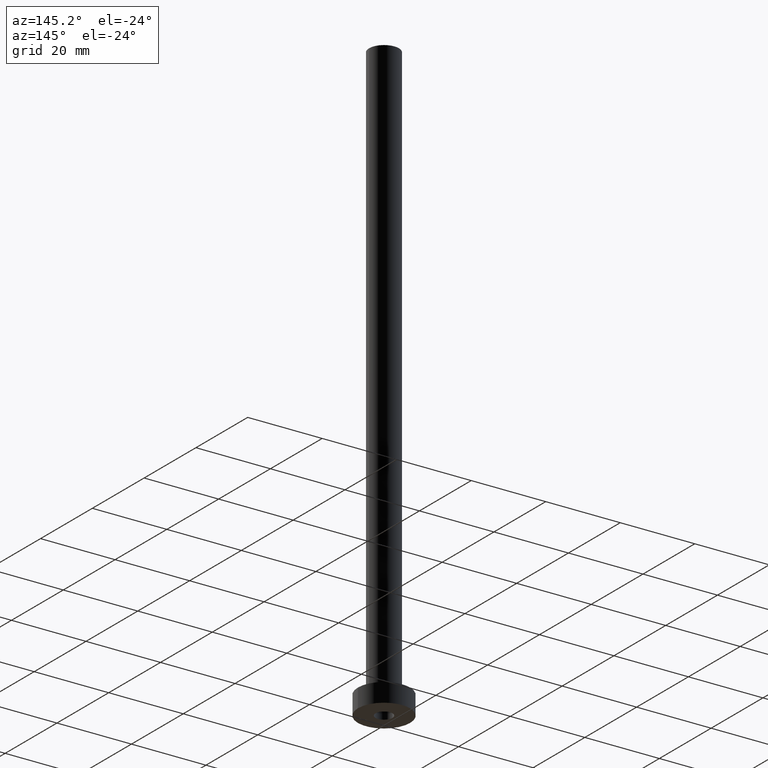
[diagram: clean part render]
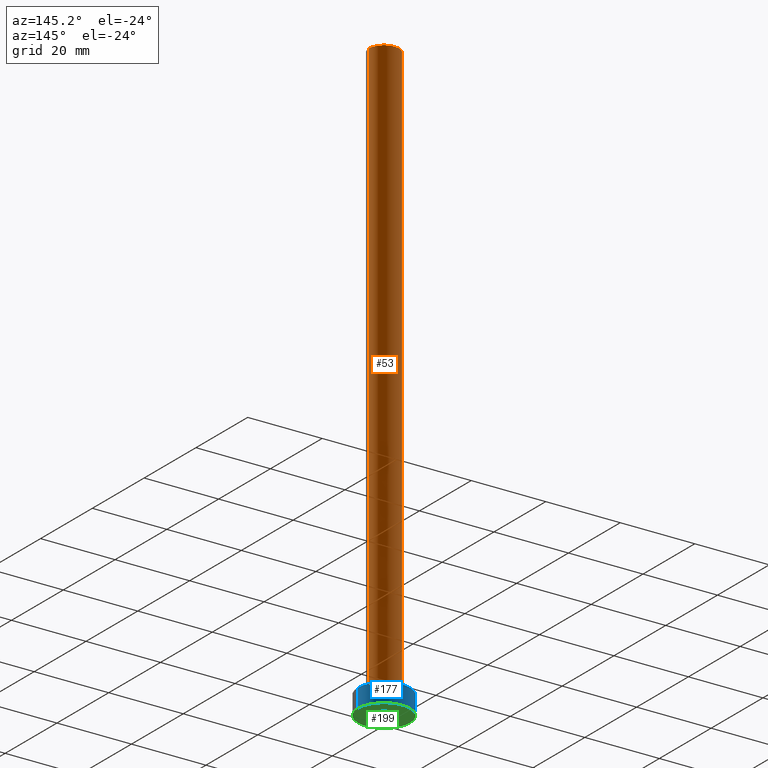
[diagram: same view with three faces highlighted in distinct colors, each labeled with its STEP entity id]
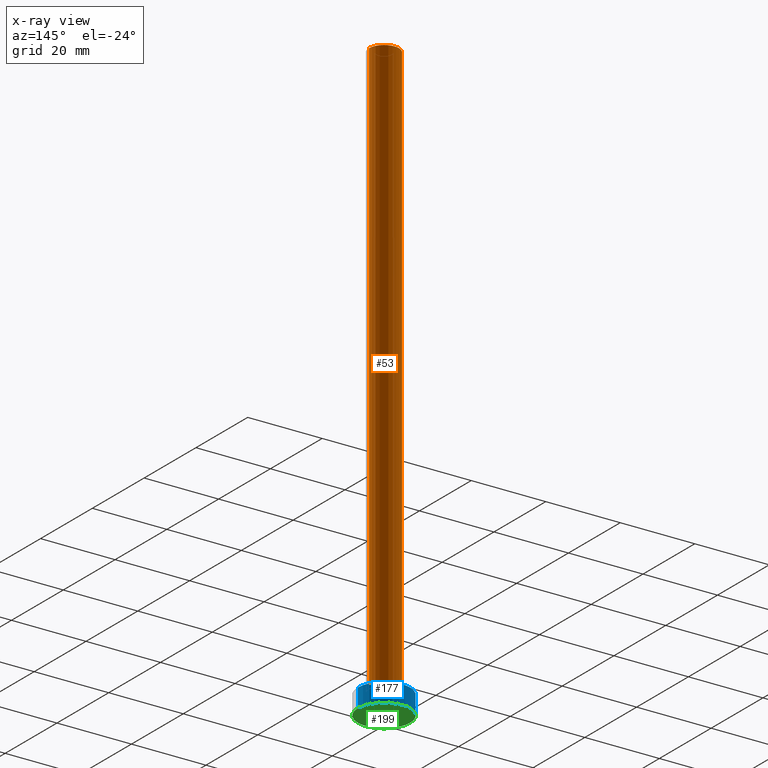
[diagram: x-ray of the same camera — body ghosted, the three highlighted faces saturated]
A machine part, auxiliary view with three faces highlighted in distinct colors.
The next image is the same camera in x-ray (body ghosted, the three faces saturated) — at least one of them is partly hidden behind the body in this view.
Their STEP definitions:

[orange] entity #53 — the highlighted cylindrical surface (edge-blend (fillet) strip) has radius 4 mm, axis along (-0, -0, -1).
#8 = VERTEX_POINT ( 'NONE', #326 ) ;
#9 = ORIENTED_EDGE ( 'NONE', *, *, #154, .T. ) ;
#28 = VERTEX_POINT ( 'NONE', #108 ) ;
#53 = ADVANCED_FACE ( 'NONE', ( #244 ), #452, .T. ) ;
#75 = DIRECTION ( 'NONE',  ( 1.000000000000000000, 0.000000000000000000, 0.000000000000000000 ) ) ;
#87 = CARTESIAN_POINT ( 'NONE',  ( 0.000000000000000000, 0.000000000000000000, 160.0000000000000000 ) ) ;
#91 = CARTESIAN_POINT ( 'NONE',  ( 4.000000000000000000, 4.898587196589412829E-16, 160.0000000000000000 ) ) ;
#108 = CARTESIAN_POINT ( 'NONE',  ( -4.000000000000000000, 0.000000000000000000, 160.0000000000000000 ) ) ;
#127 = DIRECTION ( 'NONE',  ( -0.000000000000000000, -0.000000000000000000, -1.000000000000000000 ) ) ;
#131 = DIRECTION ( 'NONE',  ( -1.000000000000000000, 0.000000000000000000, 0.000000000000000000 ) ) ;
#142 = LINE ( 'NONE', #283, #321 ) ;
#154 = EDGE_CURVE ( 'NONE', #314, #8, #403, .T. ) ;
#161 = AXIS2_PLACEMENT_3D ( 'NONE', #203, #285, #242 ) ;
#164 = CARTESIAN_POINT ( 'NONE',  ( 4.000000000000000000, 4.898587196589412829E-16, 5.500000000000005329 ) ) ;
#171 = EDGE_CURVE ( 'NONE', #247, #28, #259, .T. ) ;
#185 = EDGE_CURVE ( 'NONE', #28, #8, #142, .T. ) ;
#203 = CARTESIAN_POINT ( 'NONE',  ( 0.000000000000000000, 0.000000000000000000, 5.500000000000005329 ) ) ;
#242 = DIRECTION ( 'NONE',  ( 1.000000000000000000, 0.000000000000000000, 0.000000000000000000 ) ) ;
#244 = FACE_OUTER_BOUND ( 'NONE', #394, .T. ) ;
#245 = AXIS2_PLACEMENT_3D ( 'NONE', #87, #127, #131 ) ;
#247 = VERTEX_POINT ( 'NONE', #398 ) ;
#255 = ORIENTED_EDGE ( 'NONE', *, *, #415, .T. ) ;
#259 = CIRCLE ( 'NONE', #420, 4.000000000000000000 ) ;
#270 = DIRECTION ( 'NONE',  ( -0.000000000000000000, -0.000000000000000000, -1.000000000000000000 ) ) ;
#283 = CARTESIAN_POINT ( 'NONE',  ( -4.000000000000000000, 0.000000000000000000, 160.0000000000000000 ) ) ;
#285 = DIRECTION ( 'NONE',  ( 0.000000000000000000, 0.000000000000000000, 1.000000000000000000 ) ) ;
#297 = ORIENTED_EDGE ( 'NONE', *, *, #185, .F. ) ;
#311 = CARTESIAN_POINT ( 'NONE',  ( 0.000000000000000000, 0.000000000000000000, 160.0000000000000000 ) ) ;
#314 = VERTEX_POINT ( 'NONE', #164 ) ;
#321 = VECTOR ( 'NONE', #424, 1000.000000000000000 ) ;
#326 = CARTESIAN_POINT ( 'NONE',  ( -4.000000000000000000, 0.000000000000000000, 5.500000000000005329 ) ) ;
#394 = EDGE_LOOP ( 'NONE', ( #428, #255, #9, #297 ) ) ;
#398 = CARTESIAN_POINT ( 'NONE',  ( 4.000000000000000000, 4.898587196589412829E-16, 160.0000000000000000 ) ) ;
#403 = CIRCLE ( 'NONE', #161, 4.000000000000000000 ) ;
#404 = LINE ( 'NONE', #91, #456 ) ;
#415 = EDGE_CURVE ( 'NONE', #247, #314, #404, .T. ) ;
#420 = AXIS2_PLACEMENT_3D ( 'NONE', #311, #448, #75 ) ;
#424 = DIRECTION ( 'NONE',  ( -0.000000000000000000, -0.000000000000000000, -1.000000000000000000 ) ) ;
#428 = ORIENTED_EDGE ( 'NONE', *, *, #171, .F. ) ;
#448 = DIRECTION ( 'NONE',  ( 0.000000000000000000, 0.000000000000000000, 1.000000000000000000 ) ) ;
#452 = CYLINDRICAL_SURFACE ( 'NONE', #245, 4.000000000000000000 ) ;
#456 = VECTOR ( 'NONE', #270, 1000.000000000000000 ) ;

[blue] entity #177 — the highlighted cylindrical surface (edge-blend (fillet) strip) has radius 7 mm, axis along (-0, -0, -1).
#15 = AXIS2_PLACEMENT_3D ( 'NONE', #124, #192, #25 ) ;
#22 = ORIENTED_EDGE ( 'NONE', *, *, #234, .T. ) ;
#25 = DIRECTION ( 'NONE',  ( 1.000000000000000000, 0.000000000000000000, 0.000000000000000000 ) ) ;
#42 = LINE ( 'NONE', #149, #195 ) ;
#43 = AXIS2_PLACEMENT_3D ( 'NONE', #173, #319, #461 ) ;
#62 = CIRCLE ( 'NONE', #15, 7.000000000000000000 ) ;
#81 = VERTEX_POINT ( 'NONE', #89 ) ;
#89 = CARTESIAN_POINT ( 'NONE',  ( -7.000000000000000000, 0.000000000000000000, 5.000000000000000000 ) ) ;
#104 = ORIENTED_EDGE ( 'NONE', *, *, #140, .F. ) ;
#111 = EDGE_LOOP ( 'NONE', ( #104, #22, #207, #340 ) ) ;
#115 = VERTEX_POINT ( 'NONE', #460 ) ;
#124 = CARTESIAN_POINT ( 'NONE',  ( 0.000000000000000000, 0.000000000000000000, 0.000000000000000000 ) ) ;
#140 = EDGE_CURVE ( 'NONE', #418, #81, #217, .T. ) ;
#149 = CARTESIAN_POINT ( 'NONE',  ( 7.000000000000000000, 8.572527594031473190E-16, 5.000000000000000000 ) ) ;
#152 = AXIS2_PLACEMENT_3D ( 'NONE', #431, #182, #289 ) ;
#157 = EDGE_CURVE ( 'NONE', #115, #329, #62, .T. ) ;
#169 = LINE ( 'NONE', #214, #305 ) ;
#173 = CARTESIAN_POINT ( 'NONE',  ( 0.000000000000000000, 0.000000000000000000, 5.000000000000000000 ) ) ;
#177 = ADVANCED_FACE ( 'NONE', ( #348 ), #279, .T. ) ;
#182 = DIRECTION ( 'NONE',  ( 0.000000000000000000, 0.000000000000000000, 1.000000000000000000 ) ) ;
#192 = DIRECTION ( 'NONE',  ( 0.000000000000000000, 0.000000000000000000, 1.000000000000000000 ) ) ;
#195 = VECTOR ( 'NONE', #254, 1000.000000000000000 ) ;
#207 = ORIENTED_EDGE ( 'NONE', *, *, #157, .T. ) ;
#214 = CARTESIAN_POINT ( 'NONE',  ( -7.000000000000000000, 0.000000000000000000, 5.000000000000000000 ) ) ;
#217 = CIRCLE ( 'NONE', #152, 7.000000000000000000 ) ;
#227 = CARTESIAN_POINT ( 'NONE',  ( 7.000000000000000000, 8.572527594031473190E-16, 5.000000000000000000 ) ) ;
#230 = EDGE_CURVE ( 'NONE', #81, #329, #169, .T. ) ;
#234 = EDGE_CURVE ( 'NONE', #418, #115, #42, .T. ) ;
#254 = DIRECTION ( 'NONE',  ( -0.000000000000000000, -0.000000000000000000, -1.000000000000000000 ) ) ;
#279 = CYLINDRICAL_SURFACE ( 'NONE', #43, 7.000000000000000000 ) ;
#289 = DIRECTION ( 'NONE',  ( 1.000000000000000000, 0.000000000000000000, 0.000000000000000000 ) ) ;
#305 = VECTOR ( 'NONE', #399, 1000.000000000000000 ) ;
#319 = DIRECTION ( 'NONE',  ( -0.000000000000000000, -0.000000000000000000, -1.000000000000000000 ) ) ;
#329 = VERTEX_POINT ( 'NONE', #455 ) ;
#340 = ORIENTED_EDGE ( 'NONE', *, *, #230, .F. ) ;
#348 = FACE_OUTER_BOUND ( 'NONE', #111, .T. ) ;
#399 = DIRECTION ( 'NONE',  ( -0.000000000000000000, -0.000000000000000000, -1.000000000000000000 ) ) ;
#418 = VERTEX_POINT ( 'NONE', #227 ) ;
#431 = CARTESIAN_POINT ( 'NONE',  ( 0.000000000000000000, 0.000000000000000000, 5.000000000000000000 ) ) ;
#455 = CARTESIAN_POINT ( 'NONE',  ( -7.000000000000000000, 0.000000000000000000, 0.000000000000000000 ) ) ;
#460 = CARTESIAN_POINT ( 'NONE',  ( 7.000000000000000000, 8.572527594031473190E-16, 0.000000000000000000 ) ) ;
#461 = DIRECTION ( 'NONE',  ( -1.000000000000000000, 0.000000000000000000, 0.000000000000000000 ) ) ;

[green] entity #199 — the highlighted planar face has unit normal (0, 0, 1).
#7 = DIRECTION ( 'NONE',  ( 1.000000000000000000, 0.000000000000000000, -0.000000000000000000 ) ) ;
#14 = EDGE_CURVE ( 'NONE', #52, #228, #408, .T. ) ;
#15 = AXIS2_PLACEMENT_3D ( 'NONE', #124, #192, #25 ) ;
#25 = DIRECTION ( 'NONE',  ( 1.000000000000000000, 0.000000000000000000, 0.000000000000000000 ) ) ;
#45 = CARTESIAN_POINT ( 'NONE',  ( 0.000000000000000000, 0.000000000000000000, 0.000000000000000000 ) ) ;
#47 = PLANE ( 'NONE',  #423 ) ;
#52 = VERTEX_POINT ( 'NONE', #426 ) ;
#62 = CIRCLE ( 'NONE', #15, 7.000000000000000000 ) ;
#63 = DIRECTION ( 'NONE',  ( 1.000000000000000000, 0.000000000000000000, 0.000000000000000000 ) ) ;
#65 = CARTESIAN_POINT ( 'NONE',  ( 0.000000000000000000, 0.000000000000000000, 0.000000000000000000 ) ) ;
#90 = AXIS2_PLACEMENT_3D ( 'NONE', #309, #454, #371 ) ;
#99 = DIRECTION ( 'NONE',  ( -0.000000000000000000, -0.000000000000000000, -1.000000000000000000 ) ) ;
#115 = VERTEX_POINT ( 'NONE', #460 ) ;
#124 = CARTESIAN_POINT ( 'NONE',  ( 0.000000000000000000, 0.000000000000000000, 0.000000000000000000 ) ) ;
#150 = EDGE_LOOP ( 'NONE', ( #300, #236 ) ) ;
#157 = EDGE_CURVE ( 'NONE', #115, #329, #62, .T. ) ;
#158 = ORIENTED_EDGE ( 'NONE', *, *, #14, .F. ) ;
#162 = AXIS2_PLACEMENT_3D ( 'NONE', #65, #260, #63 ) ;
#165 = EDGE_LOOP ( 'NONE', ( #333, #158 ) ) ;
#181 = CARTESIAN_POINT ( 'NONE',  ( 0.000000000000000000, 0.000000000000000000, 0.000000000000000000 ) ) ;
#192 = DIRECTION ( 'NONE',  ( 0.000000000000000000, 0.000000000000000000, 1.000000000000000000 ) ) ;
#199 = ADVANCED_FACE ( 'NONE', ( #358, #439 ), #47, .F. ) ;
#228 = VERTEX_POINT ( 'NONE', #390 ) ;
#236 = ORIENTED_EDGE ( 'NONE', *, *, #157, .F. ) ;
#252 = DIRECTION ( 'NONE',  ( 0.000000000000000000, 0.000000000000000000, 1.000000000000000000 ) ) ;
#260 = DIRECTION ( 'NONE',  ( 0.000000000000000000, 0.000000000000000000, 1.000000000000000000 ) ) ;
#267 = AXIS2_PLACEMENT_3D ( 'NONE', #45, #99, #457 ) ;
#273 = EDGE_CURVE ( 'NONE', #228, #52, #446, .T. ) ;
#300 = ORIENTED_EDGE ( 'NONE', *, *, #362, .F. ) ;
#309 = CARTESIAN_POINT ( 'NONE',  ( 0.000000000000000000, 0.000000000000000000, 0.000000000000000000 ) ) ;
#322 = CIRCLE ( 'NONE', #162, 7.000000000000000000 ) ;
#329 = VERTEX_POINT ( 'NONE', #455 ) ;
#333 = ORIENTED_EDGE ( 'NONE', *, *, #273, .F. ) ;
#358 = FACE_BOUND ( 'NONE', #165, .T. ) ;
#362 = EDGE_CURVE ( 'NONE', #329, #115, #322, .T. ) ;
#371 = DIRECTION ( 'NONE',  ( 1.000000000000000000, 0.000000000000000000, 0.000000000000000000 ) ) ;
#390 = CARTESIAN_POINT ( 'NONE',  ( -2.250000000000000000, 0.000000000000000000, 0.000000000000000000 ) ) ;
#408 = CIRCLE ( 'NONE', #267, 2.250000000000000000 ) ;
#423 = AXIS2_PLACEMENT_3D ( 'NONE', #181, #252, #7 ) ;
#426 = CARTESIAN_POINT ( 'NONE',  ( 2.250000000000000000, 2.755455298081544285E-16, 0.000000000000000000 ) ) ;
#439 = FACE_OUTER_BOUND ( 'NONE', #150, .T. ) ;
#446 = CIRCLE ( 'NONE', #90, 2.250000000000000000 ) ;
#454 = DIRECTION ( 'NONE',  ( -0.000000000000000000, -0.000000000000000000, -1.000000000000000000 ) ) ;
#455 = CARTESIAN_POINT ( 'NONE',  ( -7.000000000000000000, 0.000000000000000000, 0.000000000000000000 ) ) ;
#457 = DIRECTION ( 'NONE',  ( 1.000000000000000000, 0.000000000000000000, 0.000000000000000000 ) ) ;
#460 = CARTESIAN_POINT ( 'NONE',  ( 7.000000000000000000, 8.572527594031473190E-16, 0.000000000000000000 ) ) ;